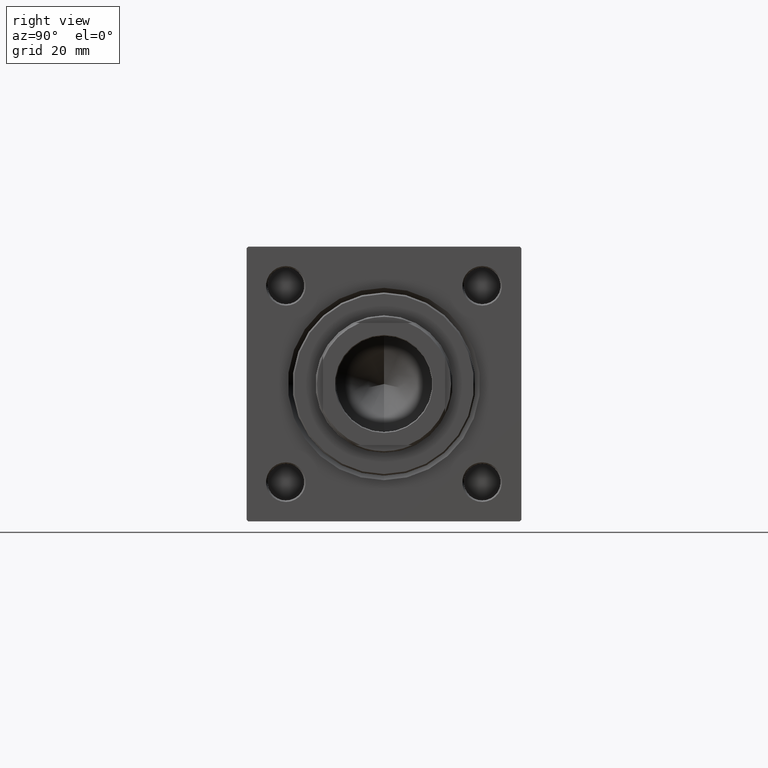
[diagram: clean part render]
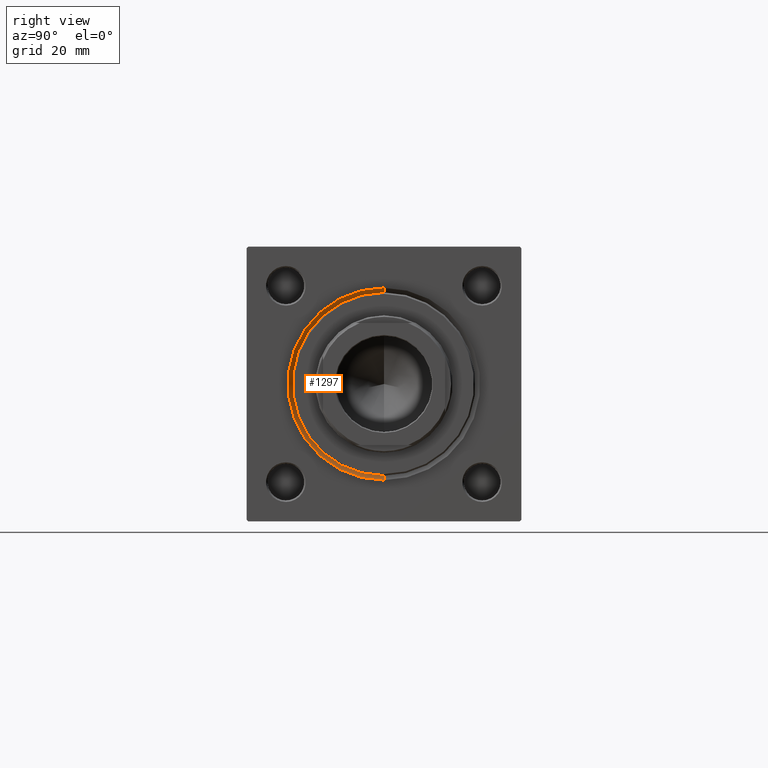
[diagram: same view with one face highlighted and labeled with its STEP entity id]
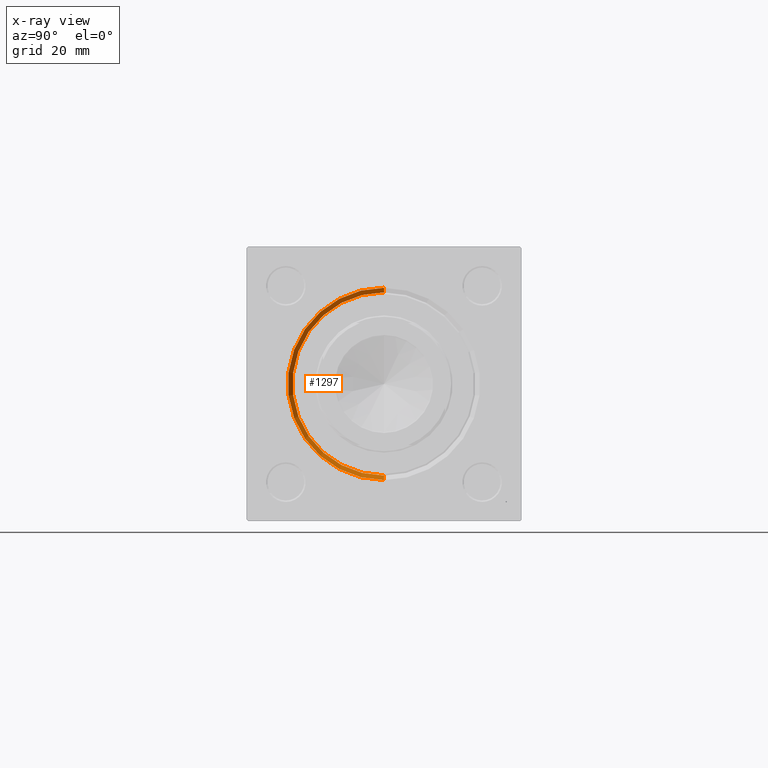
[diagram: x-ray of the same camera — body ghosted, the highlighted face saturated]
A machine part, right view. The second image highlights one B-rep face of the part: STEP entity #1297.
The next image is the same camera in x-ray: the body ghosted, the highlighted face saturated — about 0% of this face is hidden behind the body in this view.
In plain terms, the highlighted conical surface has half-angle 45 deg.
Its self-contained STEP definition (entity closure, byte-faithful):
#1286 = DIRECTION ( 'NONE',  ( 0.7071067811865474617, 0.000000000000000000, -0.7071067811865474617 ) ) ;
#1297 = ADVANCED_FACE ( 'NONE', ( #29087 ), #17715, .F. ) ;
#1636 = VECTOR ( 'NONE', #42050, 1000.000000000000114 ) ;
#2312 = CARTESIAN_POINT ( 'NONE',  ( 153.5000000000000284, 0.000000000000000000, 0.000000000000000000 ) ) ;
#4448 = EDGE_CURVE ( 'NONE', #38600, #14131, #37501, .T. ) ;
#4583 = VECTOR ( 'NONE', #1286, 1000.000000000000114 ) ;
#8303 = ORIENTED_EDGE ( 'NONE', *, *, #18919, .F. ) ;
#9313 = ORIENTED_EDGE ( 'NONE', *, *, #4448, .T. ) ;
#9837 = DIRECTION ( 'NONE',  ( 0.000000000000000000, 0.000000000000000000, -1.000000000000000000 ) ) ;
#13681 = ORIENTED_EDGE ( 'NONE', *, *, #21149, .F. ) ;
#14131 = VERTEX_POINT ( 'NONE', #39101 ) ;
#17715 = CONICAL_SURFACE ( 'NONE', #42768, 30.00000000000000000, 0.7853981633974482790 ) ;
#18919 = EDGE_CURVE ( 'NONE', #38600, #37725, #30310, .T. ) ;
#21149 = EDGE_CURVE ( 'NONE', #23832, #14131, #33603, .T. ) ;
#22175 = DIRECTION ( 'NONE',  ( 0.000000000000000000, 0.000000000000000000, 1.000000000000000000 ) ) ;
#22659 = CARTESIAN_POINT ( 'NONE',  ( 155.0000000000000000, 0.000000000000000000, 0.000000000000000000 ) ) ;
#23832 = VERTEX_POINT ( 'NONE', #40621 ) ;
#26457 = DIRECTION ( 'NONE',  ( -1.000000000000000000, 0.000000000000000000, -0.000000000000000000 ) ) ;
#27609 = EDGE_CURVE ( 'NONE', #37725, #23832, #43613, .T. ) ;
#29087 = FACE_OUTER_BOUND ( 'NONE', #39667, .T. ) ;
#30310 = CIRCLE ( 'NONE', #38373, 30.00000000000000000 ) ;
#31365 = CARTESIAN_POINT ( 'NONE',  ( 153.5000000000000284, 0.000000000000000000, -30.00000000000000000 ) ) ;
#33603 = CIRCLE ( 'NONE', #46580, 31.49999999999997158 ) ;
#36154 = CARTESIAN_POINT ( 'NONE',  ( 153.5000000000000284, 3.673940397442059178E-15, 30.00000000000000000 ) ) ;
#36429 = CARTESIAN_POINT ( 'NONE',  ( 153.5000000000000284, 0.000000000000000000, 0.000000000000000000 ) ) ;
#37501 = LINE ( 'NONE', #44887, #1636 ) ;
#37725 = VERTEX_POINT ( 'NONE', #31365 ) ;
#38373 = AXIS2_PLACEMENT_3D ( 'NONE', #2312, #41559, #41318 ) ;
#38600 = VERTEX_POINT ( 'NONE', #36154 ) ;
#39101 = CARTESIAN_POINT ( 'NONE',  ( 155.0000000000000000, 3.857637417314158745E-15, 31.49999999999997158 ) ) ;
#39667 = EDGE_LOOP ( 'NONE', ( #8303, #9313, #13681, #47994 ) ) ;
#40238 = DIRECTION ( 'NONE',  ( 1.000000000000000000, 0.000000000000000000, 0.000000000000000000 ) ) ;
#40621 = CARTESIAN_POINT ( 'NONE',  ( 155.0000000000000000, 0.000000000000000000, -31.49999999999997158 ) ) ;
#41318 = DIRECTION ( 'NONE',  ( 0.000000000000000000, 0.000000000000000000, 1.000000000000000000 ) ) ;
#41559 = DIRECTION ( 'NONE',  ( 1.000000000000000000, 0.000000000000000000, 0.000000000000000000 ) ) ;
#42050 = DIRECTION ( 'NONE',  ( 0.7071067811865474617, 8.659560562354932858E-17, 0.7071067811865474617 ) ) ;
#42768 = AXIS2_PLACEMENT_3D ( 'NONE', #36429, #40238, #9837 ) ;
#43613 = LINE ( 'NONE', #47667, #4583 ) ;
#44887 = CARTESIAN_POINT ( 'NONE',  ( 153.5000000000000284, 3.673940397442059178E-15, 30.00000000000000000 ) ) ;
#46580 = AXIS2_PLACEMENT_3D ( 'NONE', #22659, #26457, #22175 ) ;
#47667 = CARTESIAN_POINT ( 'NONE',  ( 153.5000000000000284, 0.000000000000000000, -30.00000000000000000 ) ) ;
#47994 = ORIENTED_EDGE ( 'NONE', *, *, #27609, .F. ) ;